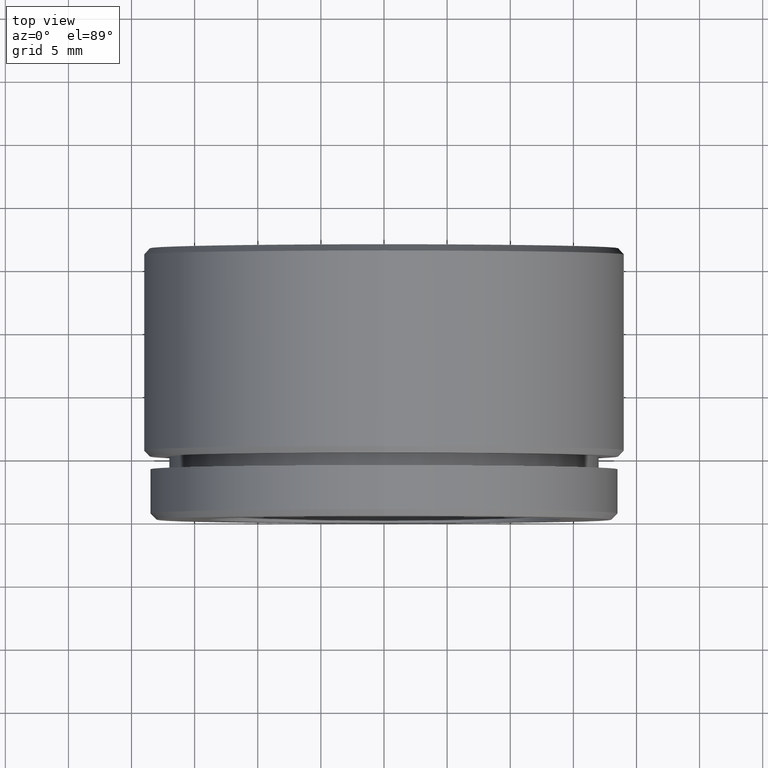
[diagram: clean part render]
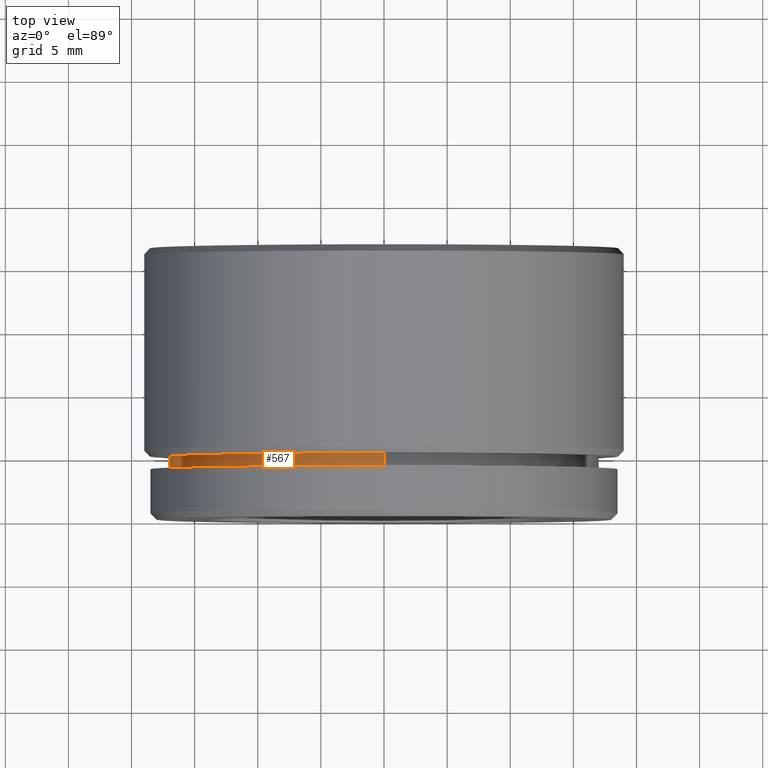
[diagram: same view with one face highlighted and labeled with its STEP entity id]
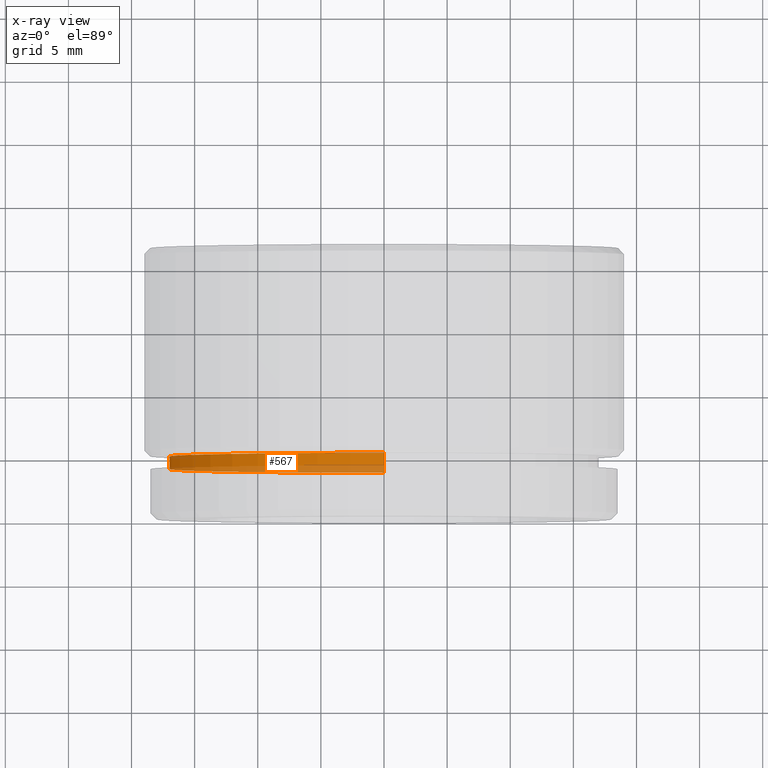
[diagram: x-ray of the same camera — body ghosted, the highlighted face saturated]
A machine part, top view. The second image highlights one B-rep face of the part: STEP entity #567.
The next image is the same camera in x-ray: the body ghosted, the highlighted face saturated — about 31% of this face is hidden behind the body in this view.
In plain terms, the highlighted cylindrical surface (partial cylindrical patch) has radius 17 mm, axis along (-0, -1, -0).
Its self-contained STEP definition (entity closure, byte-faithful):
#64 = EDGE_CURVE ( 'NONE', #602, #150, #219, .T. ) ;
#110 = DIRECTION ( 'NONE',  ( -0.0000000000000000000, -1.000000000000000000, -0.0000000000000000000 ) ) ;
#137 = LINE ( 'NONE', #994, #573 ) ;
#150 = VERTEX_POINT ( 'NONE', #393 ) ;
#165 = DIRECTION ( 'NONE',  ( 0.0000000000000000000, 0.0000000000000000000, -1.000000000000000000 ) ) ;
#219 = CIRCLE ( 'NONE', #786, 17.00000000000000000 ) ;
#221 = EDGE_CURVE ( 'NONE', #602, #990, #559, .T. ) ;
#239 = FACE_OUTER_BOUND ( 'NONE', #1059, .T. ) ;
#243 = EDGE_CURVE ( 'NONE', #150, #946, #137, .T. ) ;
#294 = CARTESIAN_POINT ( 'NONE',  ( 2.081899558550500300E-015, 0.0000000000000000000, 17.00000000000000000 ) ) ;
#314 = AXIS2_PLACEMENT_3D ( 'NONE', #787, #771, #933 ) ;
#377 = CARTESIAN_POINT ( 'NONE',  ( 0.0000000000000000000, 5.000000000000000900, 0.0000000000000000000 ) ) ;
#378 = CARTESIAN_POINT ( 'NONE',  ( 0.0000000000000000000, 4.000000000000000900, 0.0000000000000000000 ) ) ;
#393 = CARTESIAN_POINT ( 'NONE',  ( 0.0000000000000000000, 5.000000000000000900, -17.00000000000000000 ) ) ;
#412 = AXIS2_PLACEMENT_3D ( 'NONE', #378, #437, #165 ) ;
#437 = DIRECTION ( 'NONE',  ( -0.0000000000000000000, -1.000000000000000000, -0.0000000000000000000 ) ) ;
#459 = CARTESIAN_POINT ( 'NONE',  ( 2.081899558550500300E-015, 5.000000000000000900, 17.00000000000000000 ) ) ;
#462 = CARTESIAN_POINT ( 'NONE',  ( 2.081899558550500300E-015, 4.000000000000000900, 17.00000000000000000 ) ) ;
#530 = VECTOR ( 'NONE', #882, 1000.000000000000000 ) ;
#559 = LINE ( 'NONE', #294, #530 ) ;
#567 = ADVANCED_FACE ( 'NONE', ( #239 ), #960, .T. ) ;
#573 = VECTOR ( 'NONE', #854, 1000.000000000000000 ) ;
#602 = VERTEX_POINT ( 'NONE', #459 ) ;
#672 = CIRCLE ( 'NONE', #412, 17.00000000000000000 ) ;
#708 = ORIENTED_EDGE ( 'NONE', *, *, #64, .T. ) ;
#733 = ORIENTED_EDGE ( 'NONE', *, *, #243, .T. ) ;
#771 = DIRECTION ( 'NONE',  ( -0.0000000000000000000, -1.000000000000000000, -0.0000000000000000000 ) ) ;
#786 = AXIS2_PLACEMENT_3D ( 'NONE', #377, #110, #860 ) ;
#787 = CARTESIAN_POINT ( 'NONE',  ( 0.0000000000000000000, 0.0000000000000000000, 0.0000000000000000000 ) ) ;
#854 = DIRECTION ( 'NONE',  ( -0.0000000000000000000, -1.000000000000000000, -0.0000000000000000000 ) ) ;
#860 = DIRECTION ( 'NONE',  ( 0.0000000000000000000, 0.0000000000000000000, -1.000000000000000000 ) ) ;
#869 = CARTESIAN_POINT ( 'NONE',  ( 0.0000000000000000000, 4.000000000000000900, -17.00000000000000000 ) ) ;
#882 = DIRECTION ( 'NONE',  ( -0.0000000000000000000, -1.000000000000000000, -0.0000000000000000000 ) ) ;
#933 = DIRECTION ( 'NONE',  ( 0.0000000000000000000, 0.0000000000000000000, -1.000000000000000000 ) ) ;
#946 = VERTEX_POINT ( 'NONE', #869 ) ;
#960 = CYLINDRICAL_SURFACE ( 'NONE', #314, 17.00000000000000000 ) ;
#961 = ORIENTED_EDGE ( 'NONE', *, *, #221, .F. ) ;
#990 = VERTEX_POINT ( 'NONE', #462 ) ;
#994 = CARTESIAN_POINT ( 'NONE',  ( 0.0000000000000000000, 0.0000000000000000000, -17.00000000000000000 ) ) ;
#1030 = ORIENTED_EDGE ( 'NONE', *, *, #1048, .F. ) ;
#1048 = EDGE_CURVE ( 'NONE', #990, #946, #672, .T. ) ;
#1059 = EDGE_LOOP ( 'NONE', ( #961, #708, #733, #1030 ) ) ;